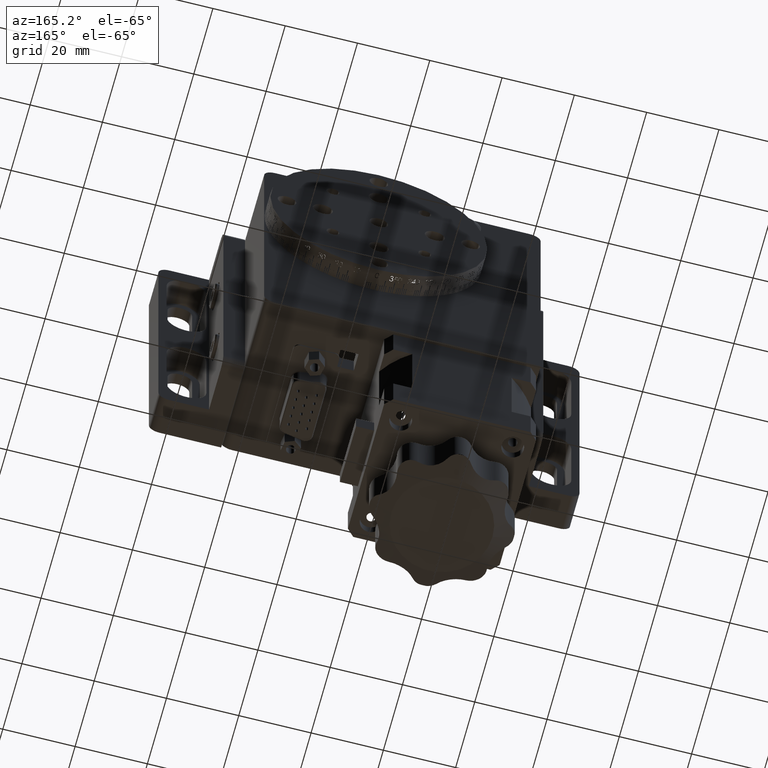
[diagram: clean part render]
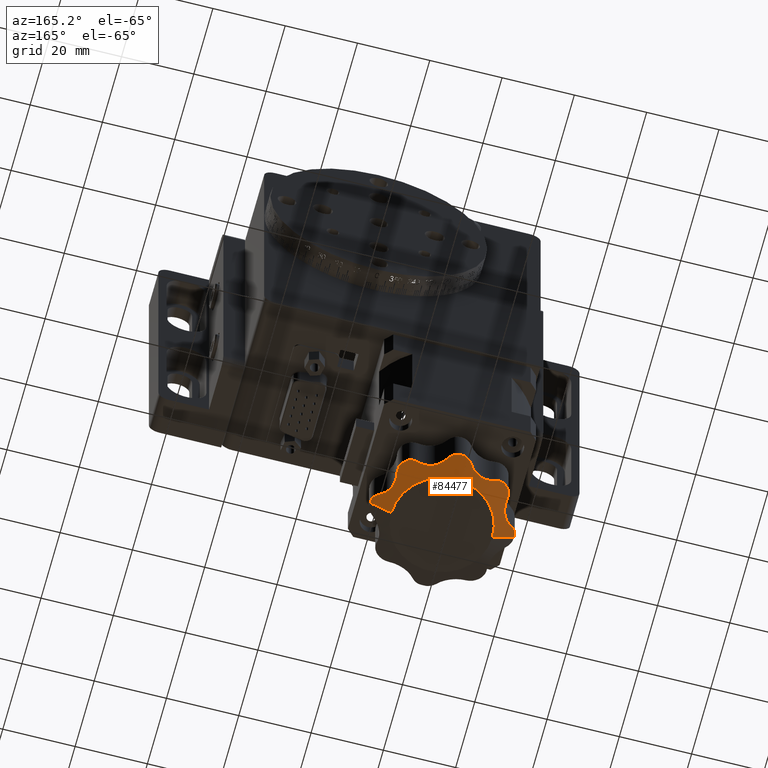
[diagram: same view with one face highlighted and labeled with its STEP entity id]
A machine part, auxiliary view. The second image highlights one B-rep face of the part: STEP entity #84477.
In plain terms, the highlighted conical surface has half-angle 63 deg.
Its self-contained STEP definition (entity closure, byte-faithful):
#343 = CARTESIAN_POINT ( 'NONE',  ( 36.28454923670563700, 0.3019903133603726300, -63.50000000000001400 ) ) ;
#1426 = CARTESIAN_POINT ( 'NONE',  ( 27.35083928797617500, 3.005926569065268800, -64.95192925695728500 ) ) ;
#2162 = CARTESIAN_POINT ( 'NONE',  ( 41.03368578314132300, -11.06834694938514800, -63.63408897820520600 ) ) ;
#2476 = CARTESIAN_POINT ( 'NONE',  ( 37.01291625088309400, -5.993568044375813000, -64.96168762824457600 ) ) ;
#3598 = CARTESIAN_POINT ( 'NONE',  ( 18.22518911183596700, 5.296870402691923600, -64.16248762794911900 ) ) ;
#4124 = AXIS2_PLACEMENT_3D ( 'NONE', #88976, #37135, #97696 ) ;
#4498 = B_SPLINE_CURVE_WITH_KNOTS ( 'NONE', 3,
 ( #43087, #24128, #51832, #112419, #60536, #8560 ),
 .UNSPECIFIED., .F., .F.,
 ( 4, 2, 4 ),
 ( 2.128886231613087700E-007, 0.001425860909439207000, 0.002851508930255253000 ),
 .UNSPECIFIED. ) ;
#4520 = CARTESIAN_POINT ( 'NONE',  ( 18.22518911183596700, 5.296870402691923600, -64.16248762794911900 ) ) ;
#5800 = CARTESIAN_POINT ( 'NONE',  ( 3.759133075833115200, -9.335222186345829300, -64.40634699302334800 ) ) ;
#6191 = CARTESIAN_POINT ( 'NONE',  ( 5.924171213959011700, -6.163618747309838500, -64.96676725715374800 ) ) ;
#6683 = CARTESIAN_POINT ( 'NONE',  ( 36.75348212235910900, -2.377799849889132800, -64.16248762794911900 ) ) ;
#7081 = CARTESIAN_POINT ( 'NONE',  ( 23.62432713278832000, 6.397261558908113900, -63.69141016394287600 ) ) ;
#7802 = CARTESIAN_POINT ( 'NONE',  ( 10.42778674251093700, 2.312872183929574700, -64.00555361555096600 ) ) ;
#7950 = CARTESIAN_POINT ( 'NONE',  ( 2.842927178751516200, -10.00140130157205900, -64.00555362269037100 ) ) ;
#8068 = DIRECTION ( 'NONE',  ( -1.000000000000000000, 0.0000000000000000000, 0.0000000000000000000 ) ) ;
#8560 = CARTESIAN_POINT ( 'NONE',  ( 34.80199031335999400, 1.784549236705967200, -63.50000000000004300 ) ) ;
#8626 = CARTESIAN_POINT ( 'NONE',  ( 15.64056019505969500, 3.008443707976687300, -64.94790422703377400 ) ) ;
#8749 = CARTESIAN_POINT ( 'NONE',  ( 36.40344518668380400, 0.09443980228571471900, -63.52569712384576000 ) ) ;
#8992 = ORIENTED_EDGE ( 'NONE', *, *, #30159, .T. ) ;
#9113 = CARTESIAN_POINT ( 'NONE',  ( 36.65864815293860300, -0.5589471918456906400, -63.64202446985256500 ) ) ;
#10176 = CARTESIAN_POINT ( 'NONE',  ( 28.16641916447721500, 2.639199992331269200, -64.97152245920723600 ) ) ;
#10371 = ORIENTED_EDGE ( 'NONE', *, *, #72310, .T. ) ;
#10865 = CARTESIAN_POINT ( 'NONE',  ( 41.36018257591583600, -11.95167253179350900, -63.50000000000001400 ) ) ;
#11175 = CARTESIAN_POINT ( 'NONE',  ( 37.35146722573953300, -6.837203879120807800, -64.96902618006029700 ) ) ;
#11612 = EDGE_CURVE ( 'NONE', #65009, #65249, #49241, .T. ) ;
#12744 = B_SPLINE_CURVE_WITH_KNOTS ( 'NONE', 3,
 ( #25744, #17009, #34429, #95029, #43157, #103733, #51908, #112499, #60603, #8626, #69330, #17397, #78041, #26110, #86709, #34804, #95401, #43512 ),
 .UNSPECIFIED., .F., .F.,
 ( 4, 2, 2, 2, 2, 2, 2, 2, 4 ),
 ( 2.131679597064885600E-007, 0.002139037759767500100, 0.003208450055671396600, 0.004277862351575293500, 0.004812568499527241300, 0.005347274647479184800, 0.006416686943383077000, 0.007486099239286969100, 0.008555511535190860400 ),
 .UNSPECIFIED. ) ;
#13227 = CARTESIAN_POINT ( 'NONE',  ( 19.56834694938544700, 6.533685783141320000, -63.63408897820520600 ) ) ;
#14919 = CARTESIAN_POINT ( 'NONE',  ( 6.086997328447091100, -5.652607138189135400, -64.93381970773043600 ) ) ;
#15052 = CARTESIAN_POINT ( 'NONE',  ( 36.67962068095770400, -2.798615244369271300, -64.31590286888204800 ) ) ;
#15344 = ORIENTED_EDGE ( 'NONE', *, *, #110138, .T. ) ;
#15794 = CARTESIAN_POINT ( 'NONE',  ( 6.196987260075139200, -1.346649113207481400, -63.83296129358587500 ) ) ;
#15826 = CARTESIAN_POINT ( 'NONE',  ( 24.17840610605225700, 5.979558836923938100, -63.86740999495889100 ) ) ;
#15968 = DIRECTION ( 'NONE',  ( -3.081487911019582200E-033, 3.158525108795071700E-032, -1.000000000000000000 ) ) ;
#16051 = EDGE_CURVE ( 'NONE', #66262, #33771, #24557, .T. ) ;
#16545 = CARTESIAN_POINT ( 'NONE',  ( 10.87779984988964300, 2.253482122359519400, -64.16248762794911900 ) ) ;
#16699 = CARTESIAN_POINT ( 'NONE',  ( 3.203129597308115100, -9.725189111835625500, -64.16248762794914700 ) ) ;
#17009 = CARTESIAN_POINT ( 'NONE',  ( 11.54670255093948900, 2.136076442089773300, -64.40634721671021600 ) ) ;
#17397 = CARTESIAN_POINT ( 'NONE',  ( 16.25386531857634900, 3.366155835519123200, -64.87822484569284100 ) ) ;
#17416 = VERTEX_POINT ( 'NONE', #101797 ) ;
#17884 = CARTESIAN_POINT ( 'NONE',  ( 36.79609788310615000, -1.245013063978944100, -63.80455221643800500 ) ) ;
#18488 = CARTESIAN_POINT ( 'NONE',  ( 21.50000000000002500, -13.00000000000001800, -63.50000000000001400 ) ) ;
#18833 = CARTESIAN_POINT ( 'NONE',  ( 21.50000000000002500, -13.00000000000001800, -63.50000000000001400 ) ) ;
#18943 = CARTESIAN_POINT ( 'NONE',  ( 28.67642898828084300, 2.462928875688913200, -64.94790426145974000 ) ) ;
#19960 = CARTESIAN_POINT ( 'NONE',  ( 37.78608713752257800, -7.625578032116422400, -64.89621449577802500 ) ) ;
#20118 = LINE ( 'NONE', #75283, #63525 ) ;
#21513 = CIRCLE ( 'NONE', #99876, 13.99999999999998400 ) ;
#21962 = CARTESIAN_POINT ( 'NONE',  ( 20.45167253179371200, 6.860182575915787100, -63.50000000000001400 ) ) ;
#22184 = CARTESIAN_POINT ( 'NONE',  ( 34.80199031335999400, 1.784549236705967200, -63.50000000000004300 ) ) ;
#22409 = DIRECTION ( 'NONE',  ( -3.081487911019582200E-033, 3.158525108795071700E-032, -1.000000000000000000 ) ) ;
#22721 = B_SPLINE_CURVE_WITH_KNOTS ( 'NONE', 3,
 ( #41624, #93459, #110925, #59062, #7081, #67802, #15826, #76471, #24555, #85161 ),
 .UNSPECIFIED., .F., .F.,
 ( 4, 2, 2, 2, 4 ),
 ( 1.845941822941760300E-006, 0.0007127976259173235500, 0.001423749310011705300, 0.002134700994106086700, 0.002845652678200468600 ),
 .UNSPECIFIED. ) ;
#23636 = CIRCLE ( 'NONE', #60960, 19.88783151651546500 ) ;
#23642 = CARTESIAN_POINT ( 'NONE',  ( 6.279805923592676600, -4.789533902610739500, -64.82341210397774500 ) ) ;
#23838 = VERTEX_POINT ( 'NONE', #93475 ) ;
#24128 = CARTESIAN_POINT ( 'NONE',  ( 32.56864707441474100, 2.331842405207781100, -63.99972798713191200 ) ) ;
#24146 = CARTESIAN_POINT ( 'NONE',  ( 36.64191605657907800, -3.225294018340139100, -64.45218855183500800 ) ) ;
#24171 = CARTESIAN_POINT ( 'NONE',  ( 21.50000000000002100, -13.00000000000001800, -66.50000000000001400 ) ) ;
#24532 = CARTESIAN_POINT ( 'NONE',  ( 6.274713514096695200, -0.8321954199286065700, -63.70296851746756800 ) ) ;
#24555 = CARTESIAN_POINT ( 'NONE',  ( 24.64494457708882200, 5.482030004651380600, -64.08127787888241800 ) ) ;
#24557 = B_SPLINE_CURVE_WITH_KNOTS ( 'NONE', 3,
 ( #343, #8749, #86821, #9113, #69823, #17884, #78531, #26591, #87188, #35308 ),
 .UNSPECIFIED., .F., .F.,
 ( 4, 2, 2, 2, 4 ),
 ( 1.845941825714955700E-006, 0.0007127976189506653900, 0.001423749296075615800, 0.002134700973200566400, 0.002845652650325516700 ),
 .UNSPECIFIED. ) ;
#25744 = CARTESIAN_POINT ( 'NONE',  ( 10.87779984988964300, 2.253482122359519400, -64.16248762794911900 ) ) ;
#25750 = CARTESIAN_POINT ( 'NONE',  ( 10.87779984988964300, 2.253482122359519400, -64.16248762794911900 ) ) ;
#25823 = EDGE_CURVE ( 'NONE', #30145, #43342, #92229, .T. ) ;
#26110 = CARTESIAN_POINT ( 'NONE',  ( 17.09250803361718600, 4.012033060216612800, -64.68062725324807600 ) ) ;
#26591 = CARTESIAN_POINT ( 'NONE',  ( 36.81287218392929400, -1.927786742510440200, -64.00555361555095100 ) ) ;
#27185 = DIRECTION ( 'NONE',  ( -1.000000000000000000, 8.722537067634747100E-017, 0.0000000000000000000 ) ) ;
#27520 = DIRECTION ( 'NONE',  ( -1.000000000000000000, 8.722537067634747100E-017, 0.0000000000000000000 ) ) ;
#27634 = CARTESIAN_POINT ( 'NONE',  ( 29.36304170602517200, 2.282197318386091700, -64.87822493680332100 ) ) ;
#28065 = ORIENTED_EDGE ( 'NONE', *, *, #106631, .T. ) ;
#28664 = CARTESIAN_POINT ( 'NONE',  ( 38.30897287478966700, -8.350610508713940000, -64.74817595451384000 ) ) ;
#30145 = VERTEX_POINT ( 'NONE', #91349 ) ;
#30159 = EDGE_CURVE ( 'NONE', #109173, #78955, #23636, .T. ) ;
#30351 = CARTESIAN_POINT ( 'NONE',  ( 41.38783151651549700, -13.00000000000002100, -63.50000000000001400 ) ) ;
#30402 = EDGE_CURVE ( 'NONE', #46853, #40296, #104447, .T. ) ;
#31581 = CARTESIAN_POINT ( 'NONE',  ( 3.203129597308115100, -9.725189111835625500, -64.16248762794914700 ) ) ;
#32125 = EDGE_CURVE ( 'NONE', #51433, #103533, #80084, .T. ) ;
#32128 = ORIENTED_EDGE ( 'NONE', *, *, #54891, .T. ) ;
#32340 = CARTESIAN_POINT ( 'NONE',  ( 6.365622168411447600, -3.737629143534350300, -64.59361327562123700 ) ) ;
#32549 = VERTEX_POINT ( 'NONE', #59598 ) ;
#33215 = CARTESIAN_POINT ( 'NONE',  ( 6.538040032045212300, -0.007706425239013007600, -63.53834399349446500 ) ) ;
#33597 = CARTESIAN_POINT ( 'NONE',  ( 8.198009686640046900, 1.784549236706133700, -63.50000000000001400 ) ) ;
#33771 = VERTEX_POINT ( 'NONE', #73713 ) ;
#34201 = ORIENTED_EDGE ( 'NONE', *, *, #11612, .T. ) ;
#34429 = CARTESIAN_POINT ( 'NONE',  ( 12.23016302368140100, 2.108641674878464200, -64.60769701872585800 ) ) ;
#34804 = CARTESIAN_POINT ( 'NONE',  ( 17.81599125102805200, 4.753904210839936100, -64.39571806788585200 ) ) ;
#35262 = CARTESIAN_POINT ( 'NONE',  ( 25.16477781365385300, 4.740866924166959400, -64.40634699302337700 ) ) ;
#35308 = CARTESIAN_POINT ( 'NONE',  ( 36.75348212235910900, -2.377799849889132800, -64.16248762794911900 ) ) ;
#36186 = VECTOR ( 'NONE', #46416, 1000.000000000000100 ) ;
#36395 = CARTESIAN_POINT ( 'NONE',  ( 30.41275635498906000, 2.145891392438382900, -64.68062728954856800 ) ) ;
#37135 = DIRECTION ( 'NONE',  ( -3.081487911019582200E-033, 3.158525108795071700E-032, -1.000000000000000000 ) ) ;
#37392 = CARTESIAN_POINT ( 'NONE',  ( 39.79687040269190800, -9.725189111835741000, -64.16248762794914700 ) ) ;
#37424 = CARTESIAN_POINT ( 'NONE',  ( 39.32811584045509100, -9.396416392769628700, -64.36808020845954600 ) ) ;
#38029 = CIRCLE ( 'NONE', #49061, 19.88783151651546500 ) ;
#38821 = EDGE_CURVE ( 'NONE', #41387, #41713, #106172, .T. ) ;
#39283 = B_SPLINE_CURVE_WITH_KNOTS ( 'NONE', 3,
 ( #31581, #5800, #92554, #40717, #101293, #49448, #110006, #58141, #6191, #66884, #14919, #75606, #23642, #84273, #32340, #92947, #41088, #101662 ),
 .UNSPECIFIED., .F., .F.,
 ( 4, 2, 2, 2, 2, 2, 2, 2, 4 ),
 ( 2.564491608432508100E-007, 0.002139081010340489000, 0.003208493290930312600, 0.004277905571520137000, 0.004812611711815047500, 0.005347317852109958000, 0.006416730132699776300, 0.007486142413289595600, 0.008555554693879413900 ),
 .UNSPECIFIED. ) ;
#40296 = VERTEX_POINT ( 'NONE', #59663 ) ;
#40534 = CARTESIAN_POINT ( 'NONE',  ( 6.186291501015422700, -1.918924217239343500, -64.00258531095416000 ) ) ;
#40717 = CARTESIAN_POINT ( 'NONE',  ( 4.928894087196108700, -8.047654975978295200, -64.82251067270570400 ) ) ;
#41088 = CARTESIAN_POINT ( 'NONE',  ( 6.305245562514811800, -2.712392749894832800, -64.28446902654370400 ) ) ;
#41166 = CARTESIAN_POINT ( 'NONE',  ( 24.77481088816406200, 5.296870402691923600, -64.16248762794911900 ) ) ;
#41220 = EDGE_CURVE ( 'NONE', #33771, #30145, #72331, .T. ) ;
#41230 = EDGE_CURVE ( 'NONE', #32549, #109173, #72972, .T. ) ;
#41354 = ORIENTED_EDGE ( 'NONE', *, *, #78139, .T. ) ;
#41387 = VERTEX_POINT ( 'NONE', #43431 ) ;
#41624 = CARTESIAN_POINT ( 'NONE',  ( 22.54832746820633100, 6.860182575915787100, -63.50000000000001400 ) ) ;
#41713 = VERTEX_POINT ( 'NONE', #30351 ) ;
#42347 = CARTESIAN_POINT ( 'NONE',  ( 8.619452914018250300, 2.001456182363039900, -63.55937591800461900 ) ) ;
#42493 = CARTESIAN_POINT ( 'NONE',  ( 1.784446417491412800, -11.50029079134296400, -63.55937591866352000 ) ) ;
#43087 = CARTESIAN_POINT ( 'NONE',  ( 32.12220015011038800, 2.253482122359387500, -64.16248762794911900 ) ) ;
#43157 = CARTESIAN_POINT ( 'NONE',  ( 13.63375352788476000, 2.281599601635502200, -64.87773681356452500 ) ) ;
#43342 = VERTEX_POINT ( 'NONE', #37392 ) ;
#43431 = CARTESIAN_POINT ( 'NONE',  ( 41.36018257591583600, -11.95167253179350900, -63.50000000000001400 ) ) ;
#43512 = CARTESIAN_POINT ( 'NONE',  ( 18.22518911183596700, 5.296870402691923600, -64.16248762794911900 ) ) ;
#44730 = CARTESIAN_POINT ( 'NONE',  ( 25.62865784591610200, 4.238188029197747400, -64.60769686623589800 ) ) ;
#45106 = CARTESIAN_POINT ( 'NONE',  ( 31.44891803972237200, 2.158893589467841600, -64.39571821121222700 ) ) ;
#45711 = FACE_OUTER_BOUND ( 'NONE', #104550, .T. ) ;
#45748 = CARTESIAN_POINT ( 'NONE',  ( 36.64191605657909200, -4.239454439206864900, -64.72349776019068200 ) ) ;
#45961 = ORIENTED_EDGE ( 'NONE', *, *, #16051, .T. ) ;
#46416 = DIRECTION ( 'NONE',  ( -0.8910065241883690100, 4.946079791225798000E-017, 0.4539904997395444700 ) ) ;
#46671 = VERTEX_POINT ( 'NONE', #22184 ) ;
#46853 = VERTEX_POINT ( 'NONE', #41166 ) ;
#47026 = AXIS2_PLACEMENT_3D ( 'NONE', #18833, #79495, #27520 ) ;
#47693 = CARTESIAN_POINT ( 'NONE',  ( 8.198009686640046900, 1.784549236706133700, -63.50000000000001400 ) ) ;
#48921 = B_SPLINE_CURVE_WITH_KNOTS ( 'NONE', 3,
 ( #76974, #85647, #42493, #103050, #51243, #111812, #59914, #7950, #68672, #16699 ),
 .UNSPECIFIED., .F., .F.,
 ( 4, 2, 2, 2, 4 ),
 ( 1.845941822930830800E-006, 0.0007127976259173493500, 0.001423749310011767800, 0.002134700994106186100, 0.002845652678200604800 ),
 .UNSPECIFIED. ) ;
#49061 = AXIS2_PLACEMENT_3D ( 'NONE', #67946, #15968, #76615 ) ;
#49241 = B_SPLINE_CURVE_WITH_KNOTS ( 'NONE', 3,
 ( #4520, #56480, #65197, #13227, #73929, #21962 ),
 .UNSPECIFIED., .F., .F.,
 ( 4, 2, 4 ),
 ( 2.561101793815462500E-007, 0.001425904833248745600, 0.002851553556318109400 ),
 .UNSPECIFIED. ) ;
#49448 = CARTESIAN_POINT ( 'NONE',  ( 5.494073430934867600, -7.149160712023411100, -64.95192925695724300 ) ) ;
#50937 = EDGE_CURVE ( 'NONE', #87750, #46853, #22721, .T. ) ;
#51089 = CARTESIAN_POINT ( 'NONE',  ( 9.286190925013150000, 2.218061303078973100, -63.69141016141858800 ) ) ;
#51243 = CARTESIAN_POINT ( 'NONE',  ( 2.102738441091891900, -10.87567286721145100, -63.69141016394286200 ) ) ;
#51433 = VERTEX_POINT ( 'NONE', #66360 ) ;
#51832 = CARTESIAN_POINT ( 'NONE',  ( 33.02552917857906300, 2.335319038172905000, -63.86107224832942800 ) ) ;
#51908 = CARTESIAN_POINT ( 'NONE',  ( 14.65689516562851200, 2.566459928787688100, -64.97122131113707200 ) ) ;
#52019 = B_SPLINE_CURVE_WITH_KNOTS ( 'NONE', 3,
 ( #83723, #92377, #40534, #101104 ),
 .UNSPECIFIED., .F., .F.,
 ( 4, 4 ),
 ( 2.128886231642111600E-007, 0.0007293649178631370900 ),
 .UNSPECIFIED. ) ;
#53439 = CARTESIAN_POINT ( 'NONE',  ( 26.74344599683735500, 3.367999254799984900, -64.87773672997951700 ) ) ;
#53778 = CARTESIAN_POINT ( 'NONE',  ( 40.16796470288771600, -9.985465367117445400, -63.99972817783115900 ) ) ;
#53799 = CARTESIAN_POINT ( 'NONE',  ( 32.12220015011038800, 2.253482122359387500, -64.16248762794911900 ) ) ;
#54157 = CARTESIAN_POINT ( 'NONE',  ( 40.49348869398902200, -10.30607272539044500, -63.86107192251731800 ) ) ;
#54463 = CARTESIAN_POINT ( 'NONE',  ( 36.92465185180260100, -5.707879279559270100, -64.94134836508310100 ) ) ;
#54891 = EDGE_CURVE ( 'NONE', #46671, #66262, #38029, .T. ) ;
#55857 = ORIENTED_EDGE ( 'NONE', *, *, #112566, .T. ) ;
#56480 = CARTESIAN_POINT ( 'NONE',  ( 18.48546536711775100, 5.667964702887681000, -63.99972817783117300 ) ) ;
#57160 = DIRECTION ( 'NONE',  ( 3.081487911019582200E-033, -3.158525108795071700E-032, 1.000000000000000000 ) ) ;
#57887 = ORIENTED_EDGE ( 'NONE', *, *, #41220, .T. ) ;
#57908 = CONICAL_SURFACE ( 'NONE', #109245, 13.99999999999998400, 1.099557428756430000 ) ;
#58141 = CARTESIAN_POINT ( 'NONE',  ( 5.860800007668888000, -6.333580835522332600, -64.97152245920725000 ) ) ;
#59062 = CARTESIAN_POINT ( 'NONE',  ( 23.42163010490080000, 6.515935704042591100, -63.64202447162426100 ) ) ;
#59545 = ORIENTED_EDGE ( 'NONE', *, *, #25823, .T. ) ;
#59598 = CARTESIAN_POINT ( 'NONE',  ( 6.186291501015421800, -1.686291501015120000, -63.93215139084615100 ) ) ;
#59663 = CARTESIAN_POINT ( 'NONE',  ( 32.12220015011038800, 2.253482122359387500, -64.16248762794911900 ) ) ;
#59766 = CARTESIAN_POINT ( 'NONE',  ( 9.973344344957926200, 2.314493876804145900, -63.86740998991040600 ) ) ;
#59914 = CARTESIAN_POINT ( 'NONE',  ( 2.520441163076081900, -10.32159389394748000, -63.86740999495887600 ) ) ;
#60030 = DIRECTION ( 'NONE',  ( -3.081487911019582200E-033, 3.158525108795071700E-032, -1.000000000000000000 ) ) ;
#60233 = EDGE_CURVE ( 'NONE', #103533, #23838, #48921, .T. ) ;
#60536 = CARTESIAN_POINT ( 'NONE',  ( 34.38588420570722100, 2.022916902990852300, -63.55151868875656600 ) ) ;
#60603 = CARTESIAN_POINT ( 'NONE',  ( 15.32027766127675900, 2.847825827041344600, -64.96676724836963500 ) ) ;
#60960 = AXIS2_PLACEMENT_3D ( 'NONE', #74382, #22409, #83050 ) ;
#61946 = LINE ( 'NONE', #105894, #36186 ) ;
#62156 = CARTESIAN_POINT ( 'NONE',  ( 27.66834296151962000, 2.845955466843093500, -64.97122129832979500 ) ) ;
#62866 = CARTESIAN_POINT ( 'NONE',  ( 41.23450244827624500, -11.48888942864408900, -63.55151871764395800 ) ) ;
#62891 = ORIENTED_EDGE ( 'NONE', *, *, #107530, .T. ) ;
#63187 = CARTESIAN_POINT ( 'NONE',  ( 37.22575422500003800, -6.557430769332673200, -64.97568938897895000 ) ) ;
#63525 = VECTOR ( 'NONE', #83966, 1000.000000000000100 ) ;
#65009 = VERTEX_POINT ( 'NONE', #3598 ) ;
#65197 = CARTESIAN_POINT ( 'NONE',  ( 18.80607272539073400, 5.993488693988984700, -63.86107192251733300 ) ) ;
#65249 = VERTEX_POINT ( 'NONE', #111586 ) ;
#66262 = VERTEX_POINT ( 'NONE', #86285 ) ;
#66360 = CARTESIAN_POINT ( 'NONE',  ( 1.612168483484541300, -13.00000000000001800, -63.50000000000001400 ) ) ;
#66884 = CARTESIAN_POINT ( 'NONE',  ( 6.037071124311260900, -5.823571011718697400, -64.94790426145969800 ) ) ;
#67795 = DIRECTION ( 'NONE',  ( -1.000000000000000000, 0.0000000000000000000, 0.0000000000000000000 ) ) ;
#67802 = CARTESIAN_POINT ( 'NONE',  ( 24.00394357603640900, 6.128005504272889100, -63.80455222056845300 ) ) ;
#67946 = CARTESIAN_POINT ( 'NONE',  ( 21.50000000000002500, -13.00000000000001800, -63.50000000000001400 ) ) ;
#68530 = CARTESIAN_POINT ( 'NONE',  ( 10.65504283533753200, 2.292580392985666300, -64.08127785875989000 ) ) ;
#68672 = CARTESIAN_POINT ( 'NONE',  ( 3.017969995348666500, -9.855055422910872700, -64.08127787888243200 ) ) ;
#69330 = CARTESIAN_POINT ( 'NONE',  ( 15.79675311813896100, 3.094030310072744900, -64.93381965715708800 ) ) ;
#69823 = CARTESIAN_POINT ( 'NONE',  ( 36.71806130307869900, -0.7861909250126807300, -63.69141016141854500 ) ) ;
#70446 = CARTESIAN_POINT ( 'NONE',  ( 1.639817424084206900, -11.95167253179351300, -63.50000000000001400 ) ) ;
#70890 = CARTESIAN_POINT ( 'NONE',  ( 28.33638125268971600, 2.575828786041151300, -64.96676725715379100 ) ) ;
#71922 = CARTESIAN_POINT ( 'NONE',  ( 37.63133732989444300, -7.370173327380261900, -64.92917723305649200 ) ) ;
#72310 = EDGE_CURVE ( 'NONE', #17416, #51433, #61946, .T. ) ;
#72331 = B_SPLINE_CURVE_WITH_KNOTS ( 'NONE', 3,
 ( #6683, #15052, #24146, #84759 ),
 .UNSPECIFIED., .F., .F.,
 ( 4, 4 ),
 ( 2.131679597194093800E-007, 0.001345775553808604200 ),
 .UNSPECIFIED. ) ;
#72972 = B_SPLINE_CURVE_WITH_KNOTS ( 'NONE', 3,
 ( #110517, #76084, #15794, #76443, #24532, #85133, #33215, #93801 ),
 .UNSPECIFIED., .F., .F.,
 ( 4, 2, 2, 4 ),
 ( 0.0007293649178631370900, 0.001259900920961144400, 0.001790436924059151500, 0.002851508930255166300 ),
 .UNSPECIFIED. ) ;
#73713 = CARTESIAN_POINT ( 'NONE',  ( 36.75348212235910900, -2.377799849889132800, -64.16248762794911900 ) ) ;
#73929 = CARTESIAN_POINT ( 'NONE',  ( 19.98888942864435900, 6.734502448276210800, -63.55151871764395800 ) ) ;
#74382 = CARTESIAN_POINT ( 'NONE',  ( 21.50000000000002500, -13.00000000000001800, -63.50000000000001400 ) ) ;
#75283 = CARTESIAN_POINT ( 'NONE',  ( 35.50000000000000700, -13.00000000000002000, -66.50000000000001400 ) ) ;
#75606 = CARTESIAN_POINT ( 'NONE',  ( 6.217802681614101900, -5.136958293974343400, -64.87822493680329200 ) ) ;
#76084 = CARTESIAN_POINT ( 'NONE',  ( 6.186291501015420000, -1.517026345730446500, -63.88090318888259100 ) ) ;
#76443 = CARTESIAN_POINT ( 'NONE',  ( 6.241184729571694200, -1.003621858883109200, -63.74380620840297200 ) ) ;
#76471 = CARTESIAN_POINT ( 'NONE',  ( 24.49859869842766000, 5.657072821248517500, -64.00555362269037100 ) ) ;
#76615 = DIRECTION ( 'NONE',  ( -1.000000000000000000, 8.722537067634747100E-017, 0.0000000000000000000 ) ) ;
#76974 = CARTESIAN_POINT ( 'NONE',  ( 1.639817424084206900, -11.95167253179351300, -63.50000000000001400 ) ) ;
#77272 = ORIENTED_EDGE ( 'NONE', *, *, #98436, .F. ) ;
#78041 = CARTESIAN_POINT ( 'NONE',  ( 16.54337427739614700, 3.567979051336603200, -64.82341199667492000 ) ) ;
#78113 = ORIENTED_EDGE ( 'NONE', *, *, #38821, .T. ) ;
#78139 = EDGE_CURVE ( 'NONE', #40296, #46671, #4498, .T. ) ;
#78531 = CARTESIAN_POINT ( 'NONE',  ( 36.81449387680387300, -1.473344344957436400, -63.86740998991037800 ) ) ;
#78955 = VERTEX_POINT ( 'NONE', #47693 ) ;
#79136 = DIRECTION ( 'NONE',  ( -3.081487911019582200E-033, 3.158525108795071700E-032, -1.000000000000000000 ) ) ;
#79495 = DIRECTION ( 'NONE',  ( -3.081487911019582200E-033, 3.158525108795071700E-032, -1.000000000000000000 ) ) ;
#79599 = CARTESIAN_POINT ( 'NONE',  ( 28.84739286181040500, 2.413002671553086600, -64.93381970773046400 ) ) ;
#79954 = CARTESIAN_POINT ( 'NONE',  ( 39.79687040269190800, -9.725189111835741000, -64.16248762794914700 ) ) ;
#80084 = CIRCLE ( 'NONE', #106037, 19.88783151651546500 ) ;
#80625 = CARTESIAN_POINT ( 'NONE',  ( 38.12424057949535700, -8.115080618802014800, -64.80595224711575500 ) ) ;
#83050 = DIRECTION ( 'NONE',  ( -1.000000000000000000, 8.722537067634747100E-017, 0.0000000000000000000 ) ) ;
#83068 = CIRCLE ( 'NONE', #4124, 19.88783151651546500 ) ;
#83723 = CARTESIAN_POINT ( 'NONE',  ( 6.246517877640932200, -2.377799849888997400, -64.16248762794911900 ) ) ;
#83966 = DIRECTION ( 'NONE',  ( 0.8910065241883690100, -1.585776266989273400E-016, 0.4539904997395444700 ) ) ;
#84273 = CARTESIAN_POINT ( 'NONE',  ( 6.354108607561848900, -4.087243645010412200, -64.68062728954848200 ) ) ;
#84386 = CARTESIAN_POINT ( 'NONE',  ( 35.50000000000002100, -13.00000000000002100, -66.50000000000001400 ) ) ;
#84477 = ADVANCED_FACE ( 'NONE', ( #45711 ), #57908, .T. ) ;
#84759 = CARTESIAN_POINT ( 'NONE',  ( 36.64191605657907800, -3.658781211555121700, -64.56815547856930900 ) ) ;
#85133 = CARTESIAN_POINT ( 'NONE',  ( 6.407218333323509500, -0.3304538089852092600, -63.59415268615261100 ) ) ;
#85161 = CARTESIAN_POINT ( 'NONE',  ( 24.77481088816406200, 5.296870402691923600, -64.16248762794911900 ) ) ;
#85647 = CARTESIAN_POINT ( 'NONE',  ( 1.702505666033223800, -11.72084002322583800, -63.52569712409769700 ) ) ;
#86285 = CARTESIAN_POINT ( 'NONE',  ( 36.28454923670563700, 0.3019903133603726300, -63.50000000000001400 ) ) ;
#86709 = CARTESIAN_POINT ( 'NONE',  ( 17.34786442545248900, 4.251106807481080300, -64.59361313621789700 ) ) ;
#86821 = CARTESIAN_POINT ( 'NONE',  ( 36.50145618236274500, -0.1194529140177382200, -63.55937591800459100 ) ) ;
#87188 = CARTESIAN_POINT ( 'NONE',  ( 36.79258039298538600, -2.155042835337045700, -64.08127785875989000 ) ) ;
#87750 = VERTEX_POINT ( 'NONE', #111573 ) ;
#88246 = CARTESIAN_POINT ( 'NONE',  ( 29.71046609738876000, 2.220194076407529900, -64.82341210397778800 ) ) ;
#88780 = ORIENTED_EDGE ( 'NONE', *, *, #101339, .T. ) ;
#88976 = CARTESIAN_POINT ( 'NONE',  ( 21.50000000000002500, -13.00000000000001800, -63.50000000000001400 ) ) ;
#89263 = CARTESIAN_POINT ( 'NONE',  ( 38.89665301249571200, -9.014108460947712200, -64.54359704629699500 ) ) ;
#89405 = ORIENTED_EDGE ( 'NONE', *, *, #60233, .T. ) ;
#90906 = VERTEX_POINT ( 'NONE', #84386 ) ;
#91349 = CARTESIAN_POINT ( 'NONE',  ( 36.64191605657907800, -3.658781211555121700, -64.56815547856930900 ) ) ;
#92229 = B_SPLINE_CURVE_WITH_KNOTS ( 'NONE', 3,
 ( #106346, #45748, #97618, #54463, #2476, #63187, #11175, #71922, #19960, #80625, #28664, #89263, #37424, #98005 ),
 .UNSPECIFIED., .F., .F.,
 ( 4, 2, 2, 2, 2, 2, 4 ),
 ( 0.001345775553808604200, 0.003148209549154261500, 0.004049426546827089800, 0.004950643544499918500, 0.005851860542172747200, 0.006753077539845578500, 0.008555511535191252400 ),
 .UNSPECIFIED. ) ;
#92377 = CARTESIAN_POINT ( 'NONE',  ( 6.206440271937141000, -2.149463208550187700, -64.07924371314862800 ) ) ;
#92554 = CARTESIAN_POINT ( 'NONE',  ( 4.261811970802349400, -8.871342154083546200, -64.60769686623592600 ) ) ;
#92947 = CARTESIAN_POINT ( 'NONE',  ( 6.341106410532421300, -3.051081960277056900, -64.39571821121214200 ) ) ;
#93295 = ORIENTED_EDGE ( 'NONE', *, *, #41230, .T. ) ;
#93459 = CARTESIAN_POINT ( 'NONE',  ( 22.77915997677399700, 6.797494333966763900, -63.52569712409769700 ) ) ;
#93475 = CARTESIAN_POINT ( 'NONE',  ( 3.203129597308115100, -9.725189111835625500, -64.16248762794914700 ) ) ;
#93801 = CARTESIAN_POINT ( 'NONE',  ( 6.715450763294411400, 0.3019903133605183500, -63.50000000000001400 ) ) ;
#94189 = CARTESIAN_POINT ( 'NONE',  ( 8.405560197714782700, 1.903445186684102700, -63.52569712384578800 ) ) ;
#95029 = CARTESIAN_POINT ( 'NONE',  ( 13.28429520101418100, 2.219378097991596900, -64.82251063144649100 ) ) ;
#95401 = CARTESIAN_POINT ( 'NONE',  ( 18.03012311261777300, 5.018750985330940200, -64.28446892330428900 ) ) ;
#95908 = ORIENTED_EDGE ( 'NONE', *, *, #105754, .T. ) ;
#96580 = CARTESIAN_POINT ( 'NONE',  ( 24.77481088816406200, 5.296870402691923600, -64.16248762794911900 ) ) ;
#96949 = CARTESIAN_POINT ( 'NONE',  ( 30.76237085646512200, 2.134377831588795300, -64.59361327562132300 ) ) ;
#97618 = CARTESIAN_POINT ( 'NONE',  ( 36.71243302920854700, -4.839859125408699100, -64.84248634189637500 ) ) ;
#97696 = DIRECTION ( 'NONE',  ( -1.000000000000000000, 8.722537067634747100E-017, 0.0000000000000000000 ) ) ;
#98005 = CARTESIAN_POINT ( 'NONE',  ( 39.79687040269190800, -9.725189111835741000, -64.16248762794914700 ) ) ;
#98357 = B_SPLINE_CURVE_WITH_KNOTS ( 'NONE', 3,
 ( #33597, #94189, #42347, #102903, #51089, #111664, #59766, #7802, #68530, #16545 ),
 .UNSPECIFIED., .F., .F.,
 ( 4, 2, 2, 2, 4 ),
 ( 1.845941825710956200E-006, 0.0007127976189506846900, 0.001423749296075658500, 0.002134700973200632300, 0.002845652650325606000 ),
 .UNSPECIFIED. ) ;
#98436 = EDGE_CURVE ( 'NONE', #17416, #90906, #21513, .T. ) ;
#99142 = VERTEX_POINT ( 'NONE', #108336 ) ;
#99623 = ORIENTED_EDGE ( 'NONE', *, *, #32125, .T. ) ;
#99876 = AXIS2_PLACEMENT_3D ( 'NONE', #111928, #60030, #8068 ) ;
#101104 = CARTESIAN_POINT ( 'NONE',  ( 6.186291501015421800, -1.686291501015120000, -63.93215139084615100 ) ) ;
#101293 = CARTESIAN_POINT ( 'NONE',  ( 5.132000745200135100, -7.756554003162250400, -64.87773672997951700 ) ) ;
#101339 = EDGE_CURVE ( 'NONE', #99142, #32549, #52019, .T. ) ;
#101662 = CARTESIAN_POINT ( 'NONE',  ( 6.246517877640932200, -2.377799849888997400, -64.16248762794911900 ) ) ;
#101790 = EDGE_CURVE ( 'NONE', #90906, #41713, #20118, .T. ) ;
#101797 = CARTESIAN_POINT ( 'NONE',  ( 7.500000000000038200, -13.00000000000001800, -66.50000000000001400 ) ) ;
#102864 = ORIENTED_EDGE ( 'NONE', *, *, #30402, .T. ) ;
#102903 = CARTESIAN_POINT ( 'NONE',  ( 9.058947191846215200, 2.158648152938902800, -63.64202446985257900 ) ) ;
#103050 = CARTESIAN_POINT ( 'NONE',  ( 1.984064295957406400, -11.07836989509899100, -63.64202447162424600 ) ) ;
#103378 = VERTEX_POINT ( 'NONE', #25750 ) ;
#103533 = VERTEX_POINT ( 'NONE', #70446 ) ;
#103733 = CARTESIAN_POINT ( 'NONE',  ( 14.31926962025936800, 2.455067561873373300, -64.95192931131181500 ) ) ;
#104447 = B_SPLINE_CURVE_WITH_KNOTS ( 'NONE', 3,
 ( #96580, #35262, #44730, #105314, #53439, #1426, #62156, #10176, #70890, #18943, #79599, #27634, #88246, #36395, #96949, #45106, #105683, #53799 ),
 .UNSPECIFIED., .F., .F.,
 ( 4, 2, 2, 2, 2, 2, 2, 2, 4 ),
 ( 2.564491608296979100E-007, 0.002139081010340402300, 0.003208493290930184700, 0.004277905571519967000, 0.004812611711814853200, 0.005347317852109739400, 0.006416730132699518700, 0.007486142413289296300, 0.008555554693879084300 ),
 .UNSPECIFIED. ) ;
#104550 = EDGE_LOOP ( 'NONE', ( #108248, #77272, #10371, #99623, #89405, #95908, #88780, #93295, #8992, #62891, #55857, #34201, #15344, #112496, #102864, #41354, #32128, #45961, #57887, #59545, #28065, #78113 ) ) ;
#105171 = B_SPLINE_CURVE_WITH_KNOTS ( 'NONE', 3,
 ( #79954, #53778, #54157, #2162, #62866, #10865 ),
 .UNSPECIFIED., .F., .F.,
 ( 4, 2, 4 ),
 ( 2.561101793498931600E-007, 0.001425904833248680100, 0.002851553556318010000 ),
 .UNSPECIFIED. ) ;
#105314 = CARTESIAN_POINT ( 'NONE',  ( 26.45234502402131200, 3.571105912804006400, -64.82251067270569000 ) ) ;
#105683 = CARTESIAN_POINT ( 'NONE',  ( 31.78760725010457100, 2.194754437485467100, -64.28446902654376100 ) ) ;
#105754 = EDGE_CURVE ( 'NONE', #23838, #99142, #39283, .T. ) ;
#105894 = CARTESIAN_POINT ( 'NONE',  ( 7.500000000000038200, -13.00000000000001800, -66.50000000000001400 ) ) ;
#106037 = AXIS2_PLACEMENT_3D ( 'NONE', #18488, #79136, #27185 ) ;
#106172 = CIRCLE ( 'NONE', #47026, 19.88783151651546500 ) ;
#106332 = CARTESIAN_POINT ( 'NONE',  ( 6.715450763294411400, 0.3019903133605183500, -63.50000000000001400 ) ) ;
#106346 = CARTESIAN_POINT ( 'NONE',  ( 36.64191605657907800, -3.658781211555121700, -64.56815547856930900 ) ) ;
#106631 = EDGE_CURVE ( 'NONE', #43342, #41387, #105171, .T. ) ;
#107530 = EDGE_CURVE ( 'NONE', #78955, #103378, #98357, .T. ) ;
#108248 = ORIENTED_EDGE ( 'NONE', *, *, #101790, .F. ) ;
#108336 = CARTESIAN_POINT ( 'NONE',  ( 6.246517877640932200, -2.377799849888997400, -64.16248762794911900 ) ) ;
#109173 = VERTEX_POINT ( 'NONE', #106332 ) ;
#109245 = AXIS2_PLACEMENT_3D ( 'NONE', #24171, #57160, #67795 ) ;
#110006 = CARTESIAN_POINT ( 'NONE',  ( 5.654044533157054400, -6.831657038479950600, -64.97122129832979500 ) ) ;
#110138 = EDGE_CURVE ( 'NONE', #65249, #87750, #83068, .T. ) ;
#110517 = CARTESIAN_POINT ( 'NONE',  ( 6.186291501015421800, -1.686291501015120000, -63.93215139084615100 ) ) ;
#110925 = CARTESIAN_POINT ( 'NONE',  ( 22.99970920865685600, 6.715553582508579000, -63.55937591866354800 ) ) ;
#111573 = CARTESIAN_POINT ( 'NONE',  ( 22.54832746820633100, 6.860182575915787100, -63.50000000000001400 ) ) ;
#111586 = CARTESIAN_POINT ( 'NONE',  ( 20.45167253179371200, 6.860182575915787100, -63.50000000000001400 ) ) ;
#111664 = CARTESIAN_POINT ( 'NONE',  ( 9.745013063979429900, 2.296097883106438700, -63.80455221643800500 ) ) ;
#111812 = CARTESIAN_POINT ( 'NONE',  ( 2.371994495727128200, -10.49605642396334200, -63.80455222056845300 ) ) ;
#111928 = CARTESIAN_POINT ( 'NONE',  ( 21.50000000000002100, -13.00000000000001800, -66.50000000000001400 ) ) ;
#112419 = CARTESIAN_POINT ( 'NONE',  ( 33.94651678098832500, 2.178286706944419800, -63.63408893785836500 ) ) ;
#112496 = ORIENTED_EDGE ( 'NONE', *, *, #50937, .T. ) ;
#112499 = CARTESIAN_POINT ( 'NONE',  ( 15.15528601989339400, 2.772454651822494400, -64.97152245309745000 ) ) ;
#112566 = EDGE_CURVE ( 'NONE', #103378, #65009, #12744, .T. ) ;